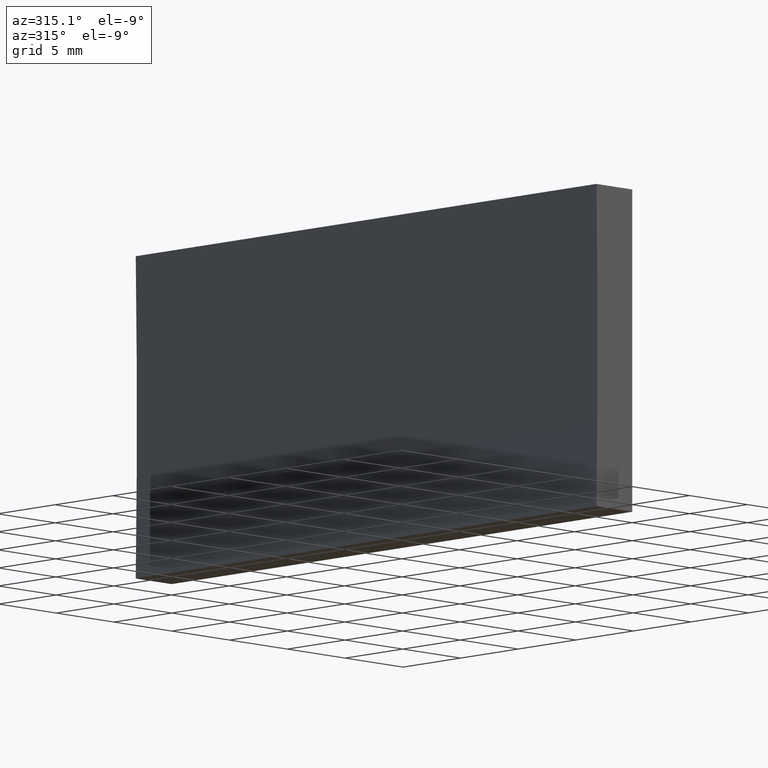
[diagram: clean part render]
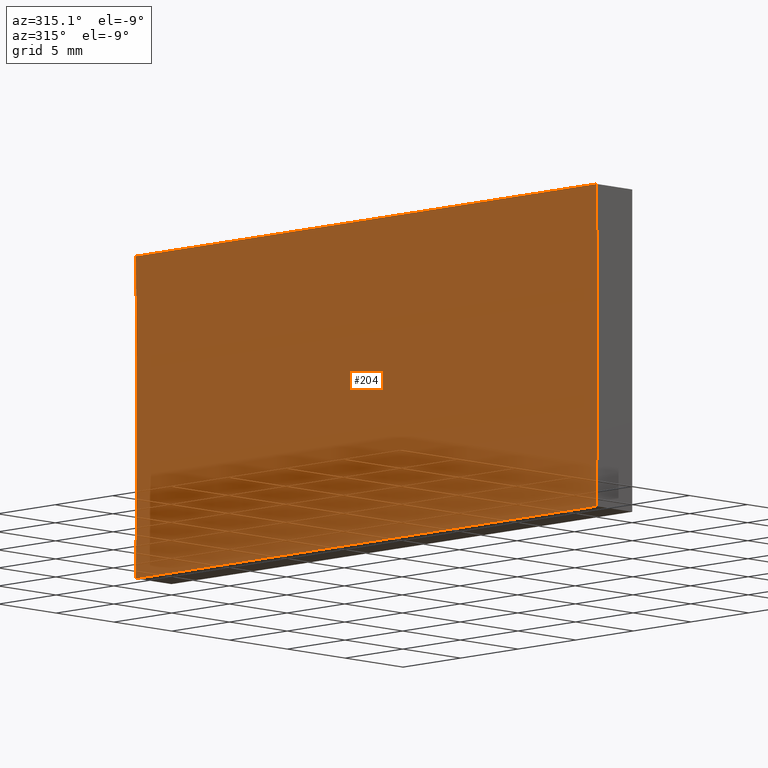
[diagram: same view with one face highlighted and labeled with its STEP entity id]
A machine part, auxiliary view. The second image highlights one B-rep face of the part: STEP entity #204.
In plain terms, the highlighted cylindrical surface (partial cylindrical patch) has radius 516.8 mm, axis along (-0, -1, -0).
Its self-contained STEP definition (entity closure, byte-faithful):
#3 = CARTESIAN_POINT ( 'NONE',  ( -3.096758283828826600, 40.00000000000000000, 5.204170427930421300E-014 ) ) ;
#12 = VERTEX_POINT ( 'NONE', #170 ) ;
#23 = CARTESIAN_POINT ( 'NONE',  ( -3.096758283828826600, 0.0000000000000000000, 5.204170427930421300E-014 ) ) ;
#25 = DIRECTION ( 'NONE',  ( -0.0000000000000000000, -1.000000000000000000, -0.0000000000000000000 ) ) ;
#26 = ORIENTED_EDGE ( 'NONE', *, *, #154, .T. ) ;
#34 = EDGE_CURVE ( 'NONE', #100, #12, #163, .T. ) ;
#65 = DIRECTION ( 'NONE',  ( -0.0000000000000000000, -1.000000000000000000, -0.0000000000000000000 ) ) ;
#73 = EDGE_LOOP ( 'NONE', ( #149, #103, #145, #26 ) ) ;
#78 = CARTESIAN_POINT ( 'NONE',  ( -519.7999999999999500, 0.0000000000000000000, 10.00000000000006200 ) ) ;
#80 = VECTOR ( 'NONE', #25, 1000.000000000000000 ) ;
#94 = EDGE_CURVE ( 'NONE', #12, #153, #132, .T. ) ;
#95 = CARTESIAN_POINT ( 'NONE',  ( -3.096758283828826600, 40.00000000000000000, 5.204170427930421300E-014 ) ) ;
#100 = VERTEX_POINT ( 'NONE', #95 ) ;
#102 = CYLINDRICAL_SURFACE ( 'NONE', #151, 516.7999999999999500 ) ;
#103 = ORIENTED_EDGE ( 'NONE', *, *, #94, .F. ) ;
#119 = AXIS2_PLACEMENT_3D ( 'NONE', #125, #142, #182 ) ;
#123 = VERTEX_POINT ( 'NONE', #23 ) ;
#124 = CARTESIAN_POINT ( 'NONE',  ( -3.096758283828832300, 0.0000000000000000000, 19.99999999999999600 ) ) ;
#125 = CARTESIAN_POINT ( 'NONE',  ( -519.7999999999999500, 40.00000000000000000, 10.00000000000006200 ) ) ;
#129 = DIRECTION ( 'NONE',  ( -0.0000000000000000000, -1.000000000000000000, -0.0000000000000000000 ) ) ;
#132 = LINE ( 'NONE', #173, #80 ) ;
#134 = VECTOR ( 'NONE', #129, 1000.000000000000000 ) ;
#136 = CARTESIAN_POINT ( 'NONE',  ( -519.7999999999999500, 40.00000000000000000, 10.00000000000006200 ) ) ;
#142 = DIRECTION ( 'NONE',  ( -0.0000000000000000000, -1.000000000000000000, -0.0000000000000000000 ) ) ;
#145 = ORIENTED_EDGE ( 'NONE', *, *, #34, .F. ) ;
#147 = DIRECTION ( 'NONE',  ( 0.0000000000000000000, 0.0000000000000000000, -1.000000000000000000 ) ) ;
#149 = ORIENTED_EDGE ( 'NONE', *, *, #192, .T. ) ;
#151 = AXIS2_PLACEMENT_3D ( 'NONE', #136, #65, #147 ) ;
#153 = VERTEX_POINT ( 'NONE', #124 ) ;
#154 = EDGE_CURVE ( 'NONE', #100, #123, #167, .T. ) ;
#155 = CIRCLE ( 'NONE', #198, 516.7999999999999500 ) ;
#160 = DIRECTION ( 'NONE',  ( 0.0000000000000000000, 0.0000000000000000000, 1.000000000000000000 ) ) ;
#161 = DIRECTION ( 'NONE',  ( -0.0000000000000000000, -1.000000000000000000, -0.0000000000000000000 ) ) ;
#163 = CIRCLE ( 'NONE', #119, 516.7999999999999500 ) ;
#167 = LINE ( 'NONE', #3, #134 ) ;
#170 = CARTESIAN_POINT ( 'NONE',  ( -3.096758283828832300, 40.00000000000000000, 19.99999999999999600 ) ) ;
#173 = CARTESIAN_POINT ( 'NONE',  ( -3.096758283828832300, 40.00000000000000000, 19.99999999999999600 ) ) ;
#182 = DIRECTION ( 'NONE',  ( 0.0000000000000000000, 0.0000000000000000000, 1.000000000000000000 ) ) ;
#192 = EDGE_CURVE ( 'NONE', #123, #153, #155, .T. ) ;
#196 = FACE_OUTER_BOUND ( 'NONE', #73, .T. ) ;
#198 = AXIS2_PLACEMENT_3D ( 'NONE', #78, #161, #160 ) ;
#204 = ADVANCED_FACE ( 'NONE', ( #196 ), #102, .F. ) ;